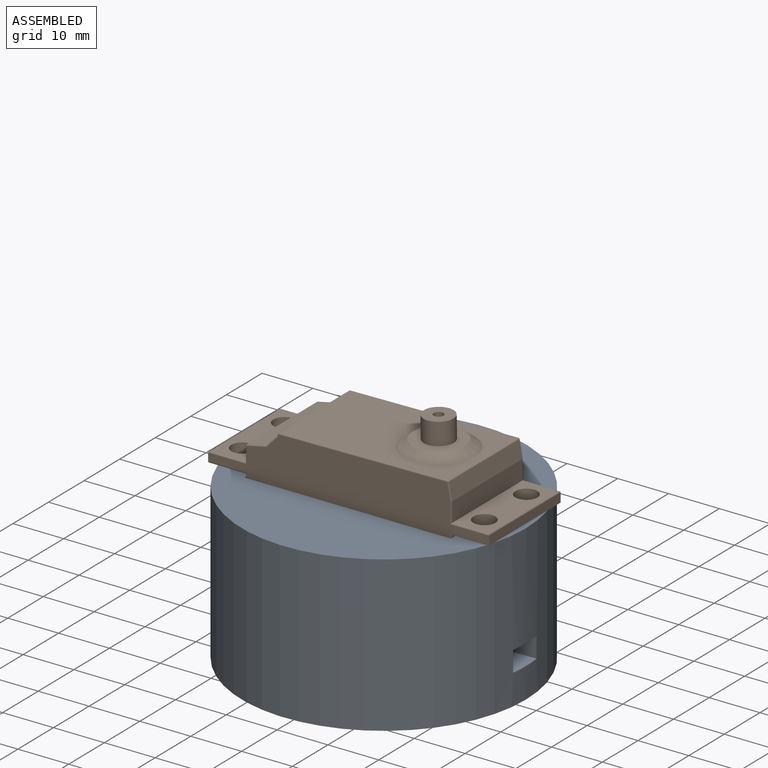
[diagram: assembled view]
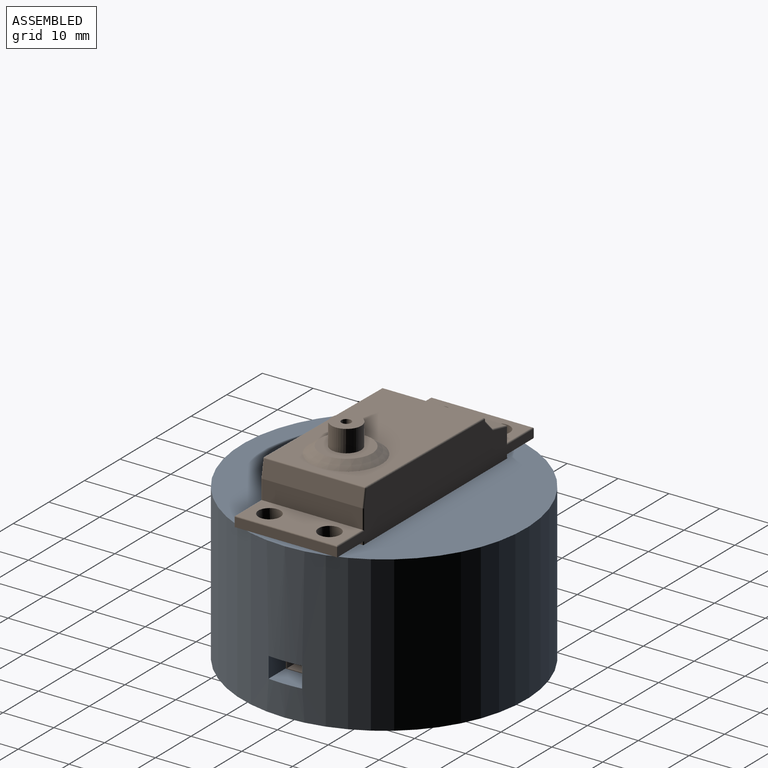
[diagram: assembled view, second angle]
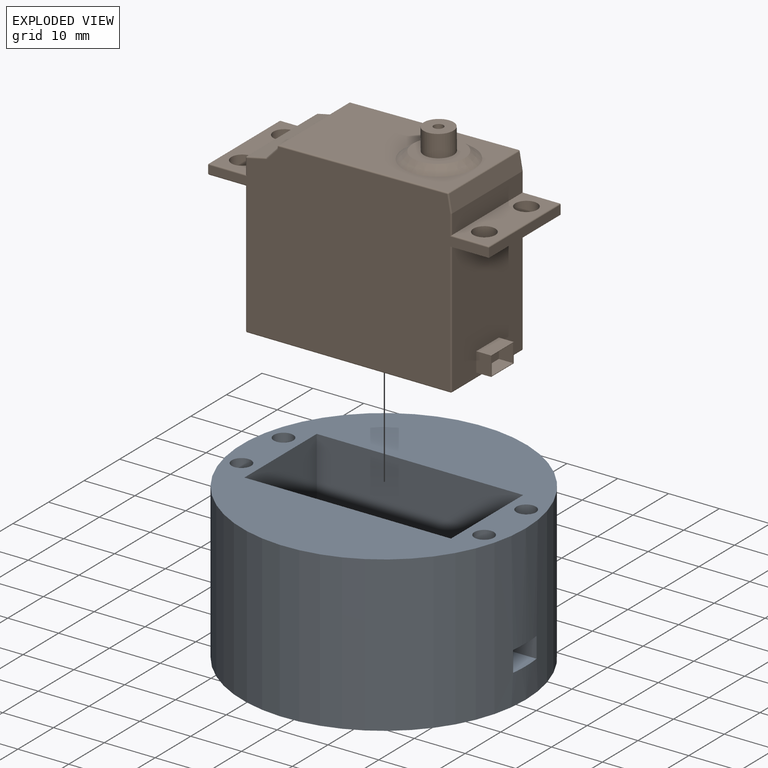
[diagram: exploded view]
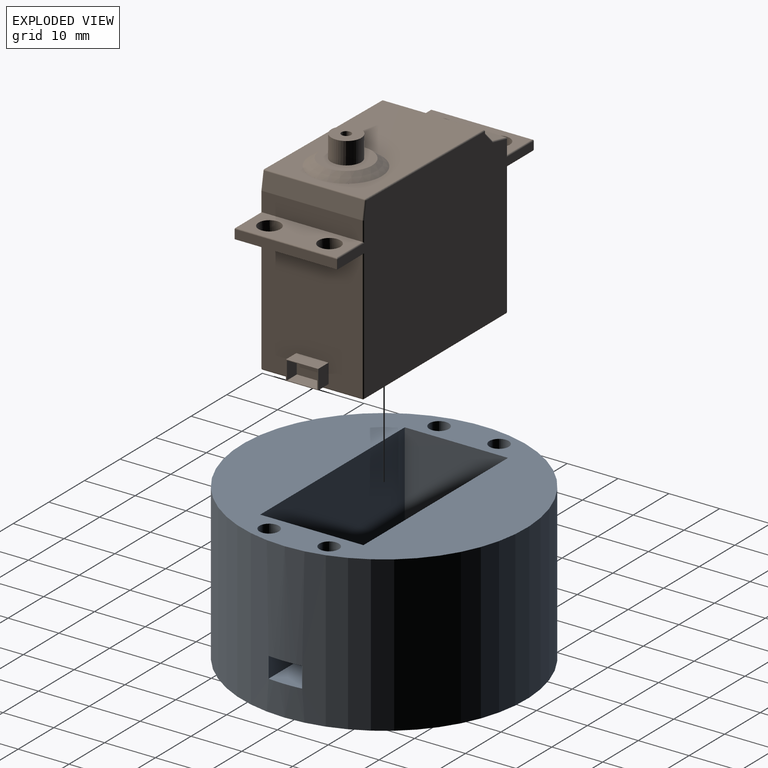
[diagram: exploded view, second angle]
ASSEMBLY  parts=2 mates=3
PART A: 20 faces, bbox 55.9x55.9x30.5 mm
  f0: cylinder r=27.94mm len=55.88mm, axis (0,0,-1), area 5323.9mm2, adj f2,f3,f16,f17,f18,f19
  f1: plane 25.4x20.32mm, normal (-1,0,0), area 489.3mm2, adj f2,f4,f6,f7,f16,f17,f18,f19
  f2: plane 55.88x55.88mm, normal (0,0,1), area 1581.1mm2, adj f0,f1,f4,f5,f6,f9,f11,f13
  f3: plane 55.88x55.88mm, normal (0,0,-1), area 2452.5mm2, adj f0
  f4: plane 40.64x25.4mm, normal (0,-1,0), area 1032.3mm2, adj f1,f2,f5,f7
  f5: plane 25.4x20.32mm, normal (1,0,0), area 516.1mm2, adj f2,f4,f6,f7
  f6: plane 40.64x25.4mm, normal (0,1,0), area 1032.3mm2, adj f1,f2,f5,f7
  f7: plane 40.64x20.32mm, normal (0,0,1), area 825.8mm2, adj f1,f4,f5,f6
  f8: cone r=0mm half-angle=59deg, axis (0,0,1), area 13.3mm2, adj f9
  f9: cylinder r=1.91mm len=5.08mm, axis (0,0,1), area 60.8mm2, adj f2,f8
  f10: cone r=0mm half-angle=59deg, axis (0,0,1), area 13.3mm2, adj f11
  f11: cylinder r=1.91mm len=5.08mm, axis (0,0,1), area 60.8mm2, adj f2,f10
  f12: cone r=0mm half-angle=59deg, axis (0,0,1), area 13.3mm2, adj f13
  f13: cylinder r=1.91mm len=5.08mm, axis (0,0,1), area 60.8mm2, adj f2,f12
  f14: cone r=0mm half-angle=59deg, axis (0,0,1), area 13.3mm2, adj f15
  f15: cylinder r=1.91mm len=5.08mm, axis (0,0,1), area 60.8mm2, adj f2,f14
  f16: plane 7.42x4.06mm, normal (0,-1,0), area 30.2mm2, adj f0,f1,f17,f19
  f17: plane 7.62x6.6mm, normal (0,0,-1), area 49.9mm2, adj f0,f1,f16,f18
  f18: plane 7.42x4.06mm, normal (0,1,0), area 30.2mm2, adj f0,f1,f17,f19
  f19: plane 7.62x6.6mm, normal (0,0,1), area 49.9mm2, adj f0,f1,f16,f18
PART B: 106 faces, bbox 55.2x41.1x20.2 mm
  f0: plane 25.78x19.69mm, normal (1,0,0), area 483.3mm2, adj f11,f33,f38,f40,f100,f101,f102,f103
  f1: cylinder r=6.99mm len=13.97mm, axis (0.01,-1,0), area 0mm2, adj f2,f19
  f2: plane 13.97x13.97mm, normal (-0.01,1,0), area 0mm2, adj f1,f20
  f3: plane 19.69x2.36mm, normal (-0.73,0.69,0), area 63.9mm2, adj f17,f47,f50,f51
  f4: plane 19.69x3.79mm, normal (-0.21,0.98,0), area 76.3mm2, adj f49,f50,f56,f57
  f5: plane 19.69x2.98mm, normal (-1,0,0), area 58.6mm2, adj f6,f52,f56,f61
  f6: plane 19.69x7.11mm, normal (0,1,0), area 110.7mm2, adj f5,f55,f60,f63,f92,f93
  f7: plane 20.14x1.53mm, normal (-1,0,0), area 30.8mm2, adj f28,f29,f44,f60
  f8: plane 19.69x7.11mm, normal (0,-1,0), area 110.7mm2, adj f9,f42,f44,f46,f92,f93
  f9: plane 25.78x19.69mm, normal (-1,0,0), area 483.3mm2, adj f8,f30,f34,f36,f82,f83,f84,f89
  f10: plane 40.01x19.69mm, normal (0,-1,0), area 787.5mm2, adj f30,f31,f32,f33
  f11: plane 20.19x7.62mm, normal (0,-1,0), area 119.5mm2, adj f0,f12,f16,f18,f26,f27,f38,f40
  f12: plane 20.14x1.79mm, normal (1,0,0), area 36mm2, adj f11,f26,f27,f78
  f13: plane 19.69x7.11mm, normal (0,1,0), area 110.7mm2, adj f14,f73,f78,f81,f94,f95
  f14: plane 19.69x3.79mm, normal (1,0,0), area 74.6mm2, adj f13,f70,f75,f79
  f15: plane 19.69x3.32mm, normal (0.98,0.18,0), area 66.4mm2, adj f68,f69,f74,f75
  f16: plane 55.19x34.93mm, normal (0,0,1), area 1395mm2, adj f11,f17,f27,f29,f31,f36,f40,f46
  f17: plane 20.19x0.56mm, normal (-1,0,0), area 4mm2, adj f3,f16,f18,f47,f51,f64,f65,f67
  f18: plane 55.19x34.93mm, normal (0,0,-1), area 1395mm2, adj f11,f17,f26,f28,f32,f34,f38,f42
  f19: plane 33.06x19.69mm, normal (-0.01,1,0), area 497.6mm2, adj f1,f64,f65,f67,f68
  f20: cone r=5.08mm half-angle=53.7deg, axis (0.01,-1,0), area 89.5mm2, adj f2,f22
  f21: cylinder r=2.92mm len=5.9mm, axis (0.01,-1,0), area 79.2mm2, adj f22,f23
  f22: plane 10.16x10.16mm, normal (-0.01,1,0), area 54.3mm2, adj f20,f21
  f23: plane 5.84x5.84mm, normal (-0.01,1,0), area 24mm2, adj f21,f24
  f24: cylinder r=0.95mm len=4.34mm, axis (0.01,-1,0), area 25.8mm2, adj f23,f25
  f25: plane 1.91x1.91mm, normal (-0.01,1,0), area 2.9mm2, adj f24
  f26: cylinder r=0.03mm len=1.79mm, axis (0,1,0), area 0.1mm2, adj f11,f12,f18,f76
  f27: cylinder r=0.03mm len=1.79mm, axis (0,-1,0), area 0.1mm2, adj f11,f12,f16,f80
  f28: cylinder r=0.03mm len=1.53mm, axis (0,-1,0), area 0.1mm2, adj f7,f18,f43,f58
  f29: cylinder r=0.03mm len=1.53mm, axis (0,1,0), area 0.1mm2, adj f7,f16,f45,f62
  f30: cylinder r=0.25mm len=19.69mm, axis (0,0,1), area 7.9mm2, adj f9,f10,f35,f37
  f31: cylinder r=0.25mm len=40.01mm, axis (-1,0,0), area 16mm2, adj f10,f16,f37,f41
  f32: cylinder r=0.25mm len=40.01mm, axis (1,0,0), area 16mm2, adj f10,f18,f35,f39
  f33: cylinder r=0.25mm len=19.69mm, axis (0,0,-1), area 7.9mm2, adj f0,f10,f39,f41
  f34: cylinder r=0.25mm len=26.04mm, axis (0,-1,0), area 10.3mm2, adj f9,f18,f35,f42
  f35: sphere r=0.25mm, area 0.1mm2, adj f30,f32,f34
  f36: cylinder r=0.25mm len=26.04mm, axis (0,1,0), area 10.3mm2, adj f9,f16,f37,f46
  f37: sphere r=0.25mm, area 0.1mm2, adj f30,f31,f36
  f38: cylinder r=0.25mm len=25.78mm, axis (0,1,0), area 10.3mm2, adj f0,f11,f18,f39
  f39: sphere r=0.25mm, area 0.1mm2, adj f32,f33,f38
  f40: cylinder r=0.25mm len=25.78mm, axis (0,-1,0), area 10.3mm2, adj f0,f11,f16,f41
  f41: sphere r=0.25mm, area 0.1mm2, adj f31,f33,f40
  f42: cylinder r=0.25mm len=7.59mm, axis (1,0,0), area 2.9mm2, adj f8,f18,f34,f43
  f43: bspline ~0.26x0.25mm, area 0mm2, adj f28,f42,f44
  f44: cylinder r=0.25mm len=20.14mm, axis (0,0,-1), area 8mm2, adj f7,f8,f43,f45
  f45: bspline ~0.26x0.25mm, area 0mm2, adj f29,f44,f46
  f46: cylinder r=0.25mm len=7.59mm, axis (-1,0,0), area 2.9mm2, adj f8,f16,f36,f45
  f47: cylinder r=0.25mm len=2.53mm, axis (-0.69,-0.73,0), area 1.3mm2, adj f3,f17,f18,f48
  f48: torus R=0.51mm, axis (0,0,1), area 0.1mm2, adj f18,f47,f49,f50
  f49: cylinder r=0.25mm len=3.84mm, axis (-0.98,-0.21,0), area 1.5mm2, adj f4,f18,f48,f53
  f50: cylinder r=0.25mm len=19.69mm, axis (0,0,1), area 3mm2, adj f3,f4,f48,f54
  f51: cylinder r=0.25mm len=2.53mm, axis (0.69,0.73,0), area 1.3mm2, adj f3,f16,f17,f54
  f52: cylinder r=0.25mm len=3.23mm, axis (0,-1,0), area 1.2mm2, adj f5,f18,f53,f55
  f53: sphere r=0.25mm, area 0.1mm2, adj f49,f52,f56
  f54: torus R=0.51mm, axis (0,0,1), area 0.1mm2, adj f16,f50,f51,f57
  f55: cylinder r=0.25mm len=7.59mm, axis (-1,0,0), area 2.9mm2, adj f6,f18,f52,f58
  f56: cylinder r=0.25mm len=19.69mm, axis (0,0,-1), area 6.8mm2, adj f4,f5,f53,f59
  f57: cylinder r=0.25mm len=3.84mm, axis (0.98,0.21,0), area 1.5mm2, adj f4,f16,f54,f59
  f58: bspline ~0.29x0.25mm, area 0mm2, adj f28,f55,f60
  f59: sphere r=0.25mm, area 0.1mm2, adj f56,f57,f61
  f60: cylinder r=0.25mm len=20.14mm, axis (0,0,-1), area 8mm2, adj f6,f7,f58,f62
  f61: cylinder r=0.25mm len=3.23mm, axis (0,1,0), area 1.2mm2, adj f5,f16,f59,f63
  f62: bspline ~0.29x0.25mm, area 0mm2, adj f29,f60,f63
  f63: cylinder r=0.25mm len=7.59mm, axis (1,0,0), area 2.9mm2, adj f6,f16,f61,f62
  f64: cylinder r=0.25mm len=33.32mm, axis (-1,-0.01,0), area 13.3mm2, adj f17,f18,f19,f65,f66
  f65: cylinder r=0.25mm len=20.19mm, axis (0,0,-1), area 7.9mm2, adj f17,f19,f64,f67
  f66: sphere r=0.25mm, area 0.1mm2, adj f64,f68,f69
  f67: cylinder r=0.25mm len=33.32mm, axis (1,0.01,0), area 13.3mm2, adj f16,f17,f19,f65,f71
  f68: cylinder r=0.25mm len=19.69mm, axis (0,0,-1), area 7mm2, adj f15,f19,f66,f71
  f69: cylinder r=0.25mm len=3.37mm, axis (-0.18,0.98,0), area 1.3mm2, adj f15,f18,f66,f72
  f70: cylinder r=0.25mm len=4.04mm, axis (0,1,0), area 1.5mm2, adj f14,f18,f72,f73
  f71: sphere r=0.25mm, area 0.1mm2, adj f67,f68,f74
  f72: sphere r=0.25mm, area 0mm2, adj f69,f70,f75
  f73: cylinder r=0.25mm len=7.59mm, axis (-1,0,0), area 2.9mm2, adj f13,f18,f70,f76
  f74: cylinder r=0.25mm len=3.37mm, axis (0.18,-0.98,0), area 1.3mm2, adj f15,f16,f71,f77
  f75: cylinder r=0.25mm len=19.69mm, axis (0,0,1), area 0.9mm2, adj f14,f15,f72,f77
  f76: bspline ~0.29x0.25mm, area 0mm2, adj f26,f73,f78
  f77: sphere r=0.25mm, area 0mm2, adj f74,f75,f79
  f78: cylinder r=0.25mm len=20.14mm, axis (0,0,1), area 8mm2, adj f12,f13,f76,f80
  f79: cylinder r=0.25mm len=4.04mm, axis (0,-1,0), area 1.5mm2, adj f14,f16,f77,f81
  f80: bspline ~0.29x0.25mm, area 0mm2, adj f27,f78,f81
  f81: cylinder r=0.25mm len=7.59mm, axis (1,0,0), area 2.9mm2, adj f13,f16,f79,f80
  f82: plane 6.35x0mm, normal (0,1,0), area 0mm2, adj f9,f83,f89,f90
  f83: plane 3.81x0mm, normal (0,0,-1), area 0mm2, adj f9,f82,f84,f90
  f84: plane 6.35x0mm, normal (0,-1,0), area 0mm2, adj f9,f83,f89,f90
  f85: plane 3.59x0mm, normal (0,0,-1), area 0mm2, adj f86,f88,f90,f91
  f86: plane 5.98x0mm, normal (0,1,0), area 0mm2, adj f85,f87,f90,f91
  f87: plane 3.59x0mm, normal (0,0,1), area 0mm2, adj f86,f88,f90,f91
  f88: plane 5.98x0mm, normal (0,-1,0), area 0mm2, adj f85,f87,f90,f91
  f89: plane 3.81x0mm, normal (0,0,1), area 0mm2, adj f9,f82,f84,f90
  f90: plane 6.35x3.81mm, normal (-1,0,0), area 2.8mm2, adj f82,f83,f84,f85,f86,f87,f88,f89
  f91: plane 5.98x3.59mm, normal (-1,0,0), area 21.4mm2, adj f85,f86,f87,f88
  f92: cylinder r=2.16mm len=4.32mm, axis (0,1,0), area 27.7mm2, adj f6,f8
  f93: cylinder r=2.16mm len=4.32mm, axis (0,1,0), area 27.7mm2, adj f6,f8
  f94: cylinder r=2.16mm len=4.32mm, axis (0,1,0), area 27.7mm2, adj f11,f13
  f95: cylinder r=2.16mm len=4.32mm, axis (0,1,0), area 27.7mm2, adj f11,f13
  f96: plane 3.59x2.79mm, normal (0,0,-1), area 10mm2, adj f97,f99,f104,f105
  f97: plane 5.98x2.79mm, normal (0,-1,0), area 16.7mm2, adj f96,f98,f104,f105
  f98: plane 3.59x2.79mm, normal (0,0,1), area 10mm2, adj f97,f99,f104,f105
  f99: plane 5.98x2.79mm, normal (0,1,0), area 16.7mm2, adj f96,f98,f104,f105
  f100: plane 6.35x2.92mm, normal (0,1,0), area 18.5mm2, adj f0,f101,f103,f104
  f101: plane 3.81x2.92mm, normal (0,0,1), area 11.1mm2, adj f0,f100,f102,f104
  f102: plane 6.35x2.92mm, normal (0,-1,0), area 18.5mm2, adj f0,f101,f103,f104
  f103: plane 3.81x2.92mm, normal (0,0,-1), area 11.1mm2, adj f0,f100,f102,f104
  f104: plane 6.35x3.81mm, normal (1,0,0), area 2.8mm2, adj f96,f97,f98,f99,f100,f101,f102,f103
  f105: plane 5.98x3.59mm, normal (1,0,0), area 21.4mm2, adj f96,f97,f98,f99
PLACE A at identity
PLACE B rot(axis=(1,0,0),90deg) t=(-20.19,10.16,31.12)mm
MATE planar B.f10 <-> A.f0  axis (0,0,-1) through (0.06,0.06,5.08)mm
MATE planar B.f0 <-> A.f1  axis (1,0,0) through (20.32,0.06,18.74)mm
MATE planar B.f18 <-> A.f4  axis (0,1,0) through (0.34,10.16,22.65)mm
